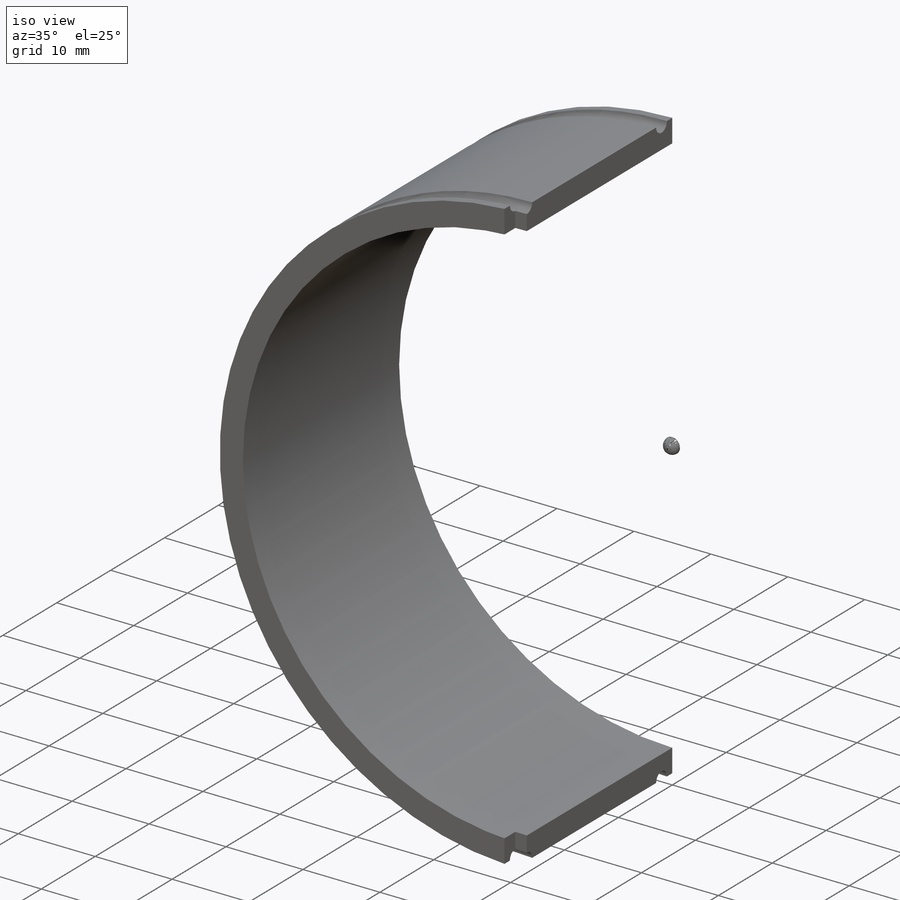
[diagram: iso view]
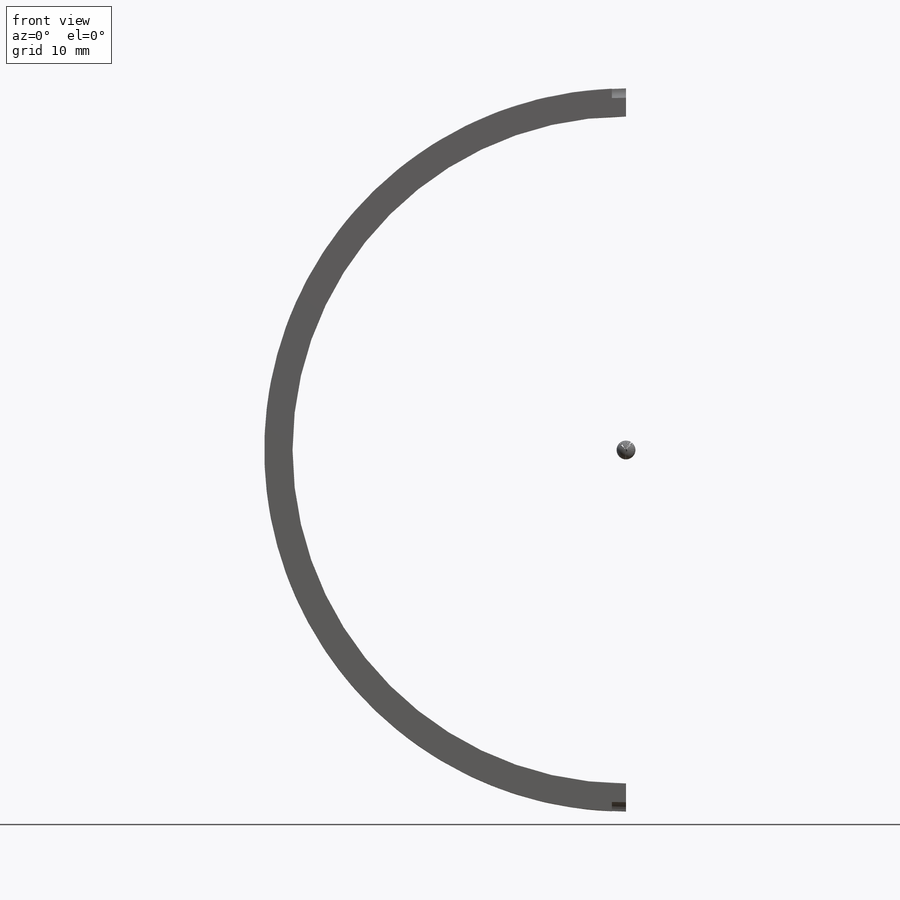
[diagram: front view]
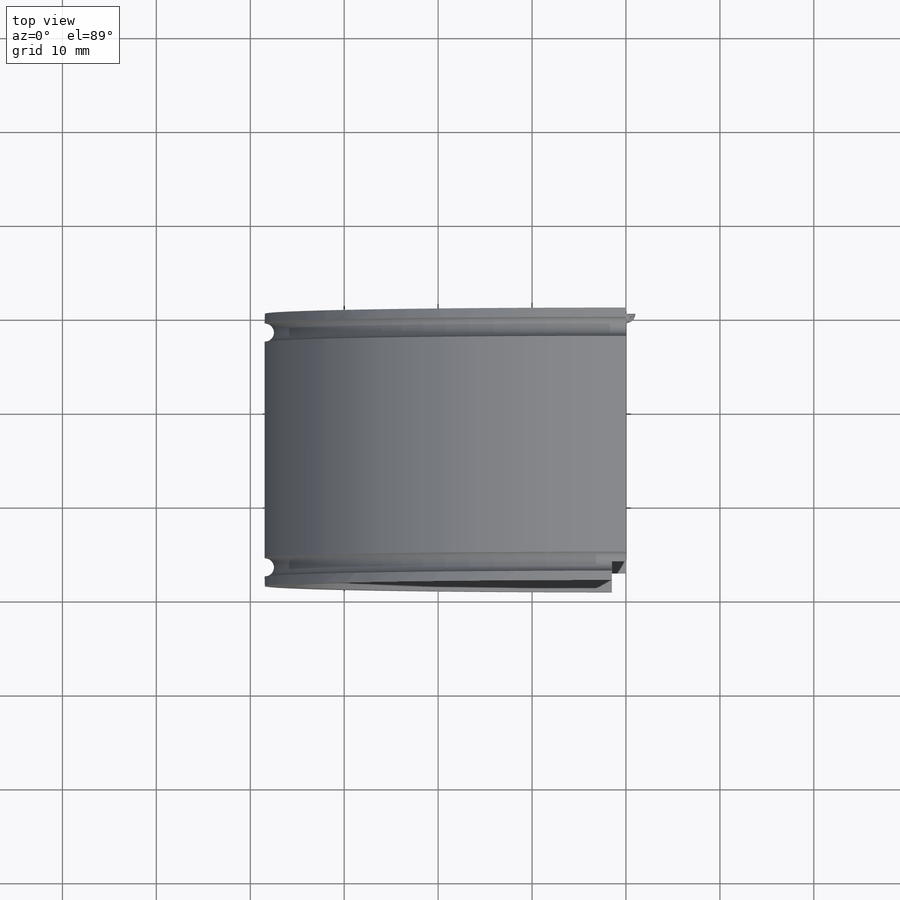
[diagram: top view]
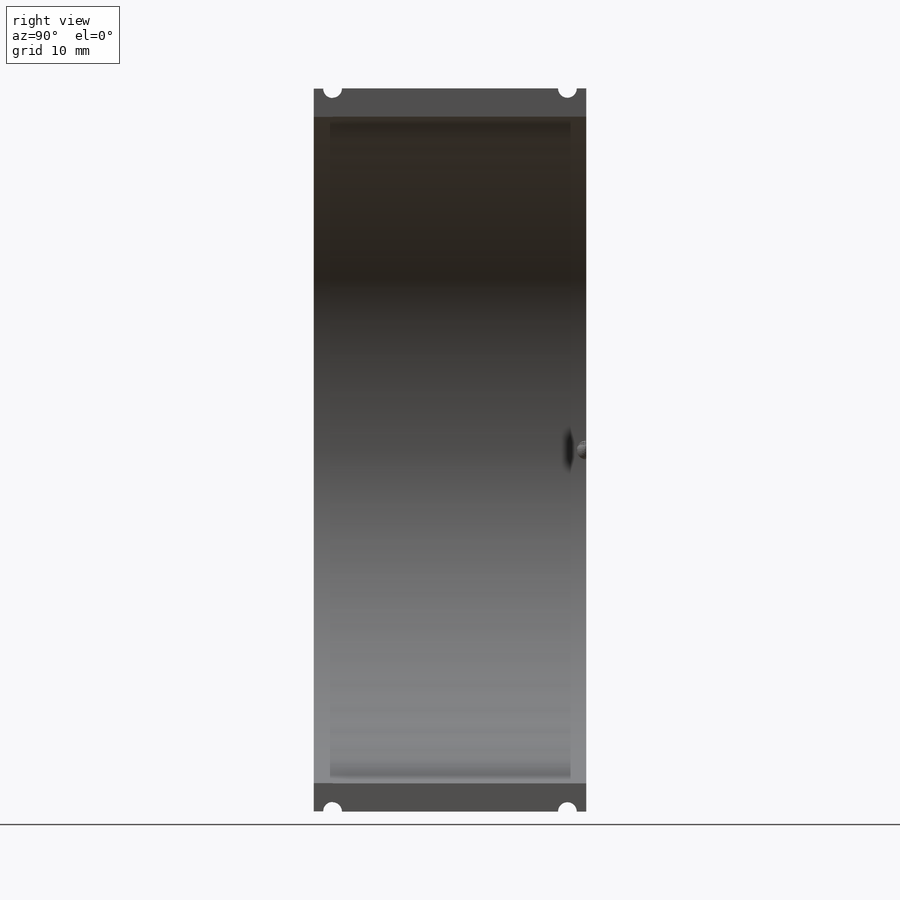
[diagram: right view]
SOLIDWORKS PART (.sldprt)
format: sldprt  version: not decoded by parser v0  size: 248,832 bytes
history: native  units: mm
features: sketch x3, material x1, extrude x1, cut_revolve x1, cut_extrude x1 (+12 scaffold rows collapsed)
feature tree (19):
  scaffold x12  (default folders/planes/origin — collapsed)
  material  "ABS"
  sketch  "Sketch1"  dims[c1.D1=~28.864041mm c1.D2=77.0mm c2.D1=3.0mm]
  extrude  "Main Shell"  Depth=29mm
  sketch  "Sketch3"  dims[D1=2.0mm D2=2.0mm D3=2.0mm]
  cut_revolve  "Rubber Band Holder"  Angle=360deg
  sketch  "Sketch4"  dims[D1=1.5mm]
  cut_extrude  "End Stop"  Depth=2mm
decode coverage: 6 of 6 modeling features carry decoded parameters
note: ~ marks probable driven/reference dimensions
note: suppression state not decoded; provenance and decode notes live in map.json
